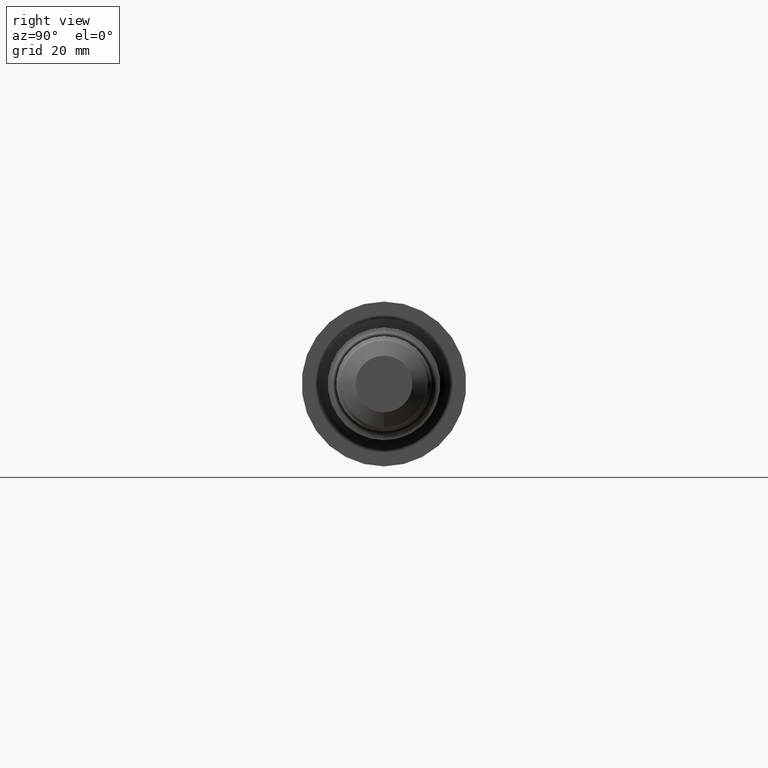
[diagram: clean part render]
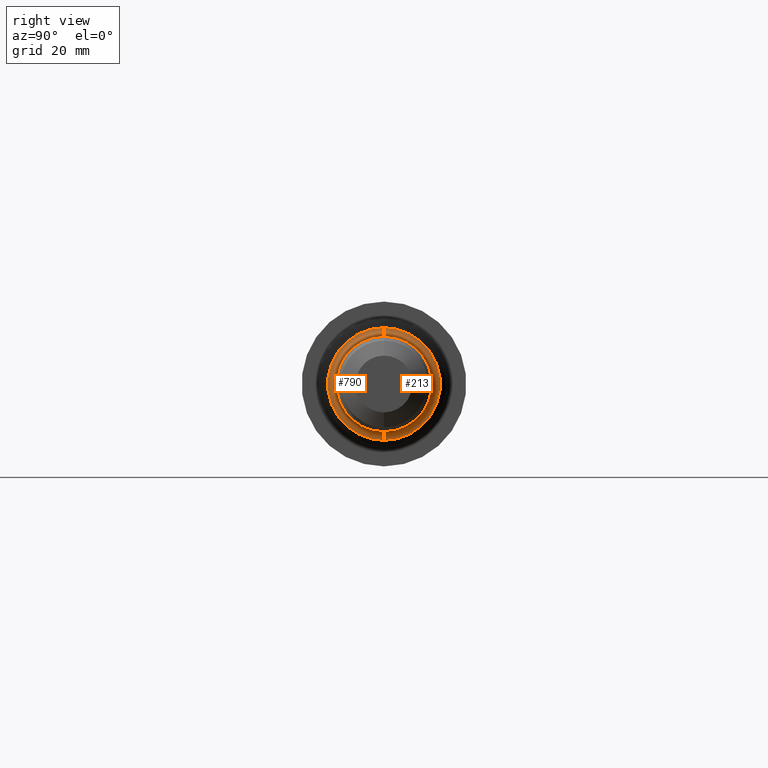
[diagram: same view with one multi-face feature highlighted, each face labeled with its STEP entity id]
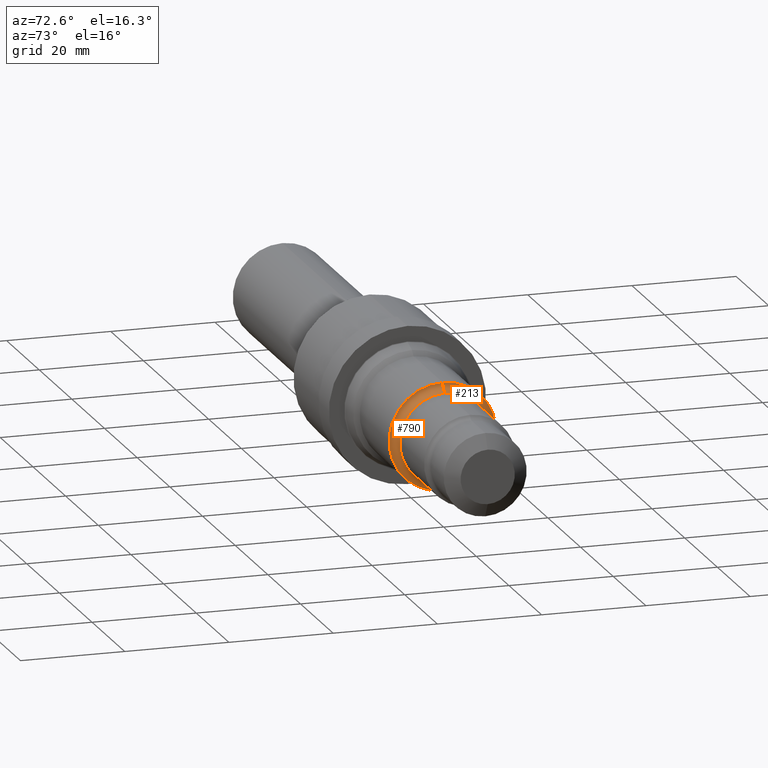
[diagram: same view with one multi-face feature highlighted, each face labeled with its STEP entity id]
A machine part, right view. The highlighted faces form ONE feature: a constant-radius fillet chain: 2 tangent blend faces with common blend radius 1.5748 mm. The faces share edges in the B-rep.
A second angle (auxiliary view) of the same feature is appended — it is thin or edge-on in the first view.
Their STEP definitions:
[1] entity #790 (Torus):
#17 = CIRCLE ( 'NONE', #363, 0.06199999999999997874 ) ;
#30 = CARTESIAN_POINT ( 'NONE',  ( 3.976998709663992493, 0.0000000000000000000, 0.3443999999999999284 ) ) ;
#148 = DIRECTION ( 'NONE',  ( 0.0000000000000000000, -1.000000000000000000, 0.0000000000000000000 ) ) ;
#151 = DIRECTION ( 'NONE',  ( -1.000000000000000000, -0.0000000000000000000, -0.0000000000000000000 ) ) ;
#168 = VERTEX_POINT ( 'NONE', #209 ) ;
#171 = FACE_OUTER_BOUND ( 'NONE', #551, .T. ) ;
#175 = DIRECTION ( 'NONE',  ( 0.0000000000000000000, 0.0000000000000000000, 1.000000000000000000 ) ) ;
#197 = CIRCLE ( 'NONE', #854, 0.4060000000000000275 ) ;
#209 = CARTESIAN_POINT ( 'NONE',  ( 3.915000000000000036, 4.972066004538254721E-17, -0.4060000000000000275 ) ) ;
#212 = CARTESIAN_POINT ( 'NONE',  ( 3.976998709663992493, 0.0000000000000000000, 0.0000000000000000000 ) ) ;
#220 = AXIS2_PLACEMENT_3D ( 'NONE', #624, #778, #704 ) ;
#268 = EDGE_CURVE ( 'NONE', #758, #508, #17, .T. ) ;
#283 = EDGE_CURVE ( 'NONE', #432, #508, #578, .T. ) ;
#310 = DIRECTION ( 'NONE',  ( 0.0000000000000000000, 0.0000000000000000000, 1.000000000000000000 ) ) ;
#315 = EDGE_CURVE ( 'NONE', #168, #758, #197, .T. ) ;
#323 = AXIS2_PLACEMENT_3D ( 'NONE', #442, #881, #310 ) ;
#363 = AXIS2_PLACEMENT_3D ( 'NONE', #823, #148, #585 ) ;
#366 = CIRCLE ( 'NONE', #220, 0.06199999999999997874 ) ;
#375 = DIRECTION ( 'NONE',  ( 0.0000000000000000000, 0.0000000000000000000, 1.000000000000000000 ) ) ;
#432 = VERTEX_POINT ( 'NONE', #542 ) ;
#442 = CARTESIAN_POINT ( 'NONE',  ( 3.976998709663992493, 0.0000000000000000000, 0.0000000000000000000 ) ) ;
#448 = ORIENTED_EDGE ( 'NONE', *, *, #784, .T. ) ;
#508 = VERTEX_POINT ( 'NONE', #30 ) ;
#542 = CARTESIAN_POINT ( 'NONE',  ( 3.976998709663992493, 4.594874790400869413E-17, -0.3443999999999999284 ) ) ;
#551 = EDGE_LOOP ( 'NONE', ( #637, #448, #891, #726 ) ) ;
#578 = CIRCLE ( 'NONE', #323, 0.3443999999999999284 ) ;
#585 = DIRECTION ( 'NONE',  ( 0.0000000000000000000, 0.0000000000000000000, -1.000000000000000000 ) ) ;
#624 = CARTESIAN_POINT ( 'NONE',  ( 3.976998709663992493, 4.976964591734842644E-17, -0.4063999999999999280 ) ) ;
#637 = ORIENTED_EDGE ( 'NONE', *, *, #315, .F. ) ;
#671 = CARTESIAN_POINT ( 'NONE',  ( 3.915000000000000036, 0.0000000000000000000, 0.0000000000000000000 ) ) ;
#702 = CARTESIAN_POINT ( 'NONE',  ( 3.915000000000000036, 0.0000000000000000000, 0.4060000000000000275 ) ) ;
#704 = DIRECTION ( 'NONE',  ( 0.0000000000000000000, -1.224646799147353700E-16, 1.000000000000000000 ) ) ;
#710 = AXIS2_PLACEMENT_3D ( 'NONE', #212, #151, #175 ) ;
#726 = ORIENTED_EDGE ( 'NONE', *, *, #268, .F. ) ;
#735 = TOROIDAL_SURFACE ( 'NONE', #710, 0.4063999999999999280, 0.06200000000000000649 ) ;
#758 = VERTEX_POINT ( 'NONE', #702 ) ;
#778 = DIRECTION ( 'NONE',  ( -0.0000000000000000000, 1.000000000000000000, 1.224646799147353207E-16 ) ) ;
#784 = EDGE_CURVE ( 'NONE', #168, #432, #366, .T. ) ;
#790 = ADVANCED_FACE ( 'NONE', ( #171 ), #735, .F. ) ;
#818 = DIRECTION ( 'NONE',  ( -1.000000000000000000, -0.0000000000000000000, -0.0000000000000000000 ) ) ;
#823 = CARTESIAN_POINT ( 'NONE',  ( 3.976998709663992493, 0.0000000000000000000, 0.4063999999999999280 ) ) ;
#854 = AXIS2_PLACEMENT_3D ( 'NONE', #671, #818, #375 ) ;
#881 = DIRECTION ( 'NONE',  ( -1.000000000000000000, -0.0000000000000000000, -0.0000000000000000000 ) ) ;
#891 = ORIENTED_EDGE ( 'NONE', *, *, #283, .T. ) ;
[2] entity #213 (Torus):
#17 = CIRCLE ( 'NONE', #363, 0.06199999999999997874 ) ;
#30 = CARTESIAN_POINT ( 'NONE',  ( 3.976998709663992493, 0.0000000000000000000, 0.3443999999999999284 ) ) ;
#75 = EDGE_CURVE ( 'NONE', #508, #432, #892, .T. ) ;
#148 = DIRECTION ( 'NONE',  ( 0.0000000000000000000, -1.000000000000000000, 0.0000000000000000000 ) ) ;
#164 = ORIENTED_EDGE ( 'NONE', *, *, #268, .T. ) ;
#168 = VERTEX_POINT ( 'NONE', #209 ) ;
#209 = CARTESIAN_POINT ( 'NONE',  ( 3.915000000000000036, 4.972066004538254721E-17, -0.4060000000000000275 ) ) ;
#213 = ADVANCED_FACE ( 'NONE', ( #374 ), #810, .F. ) ;
#219 = ORIENTED_EDGE ( 'NONE', *, *, #784, .F. ) ;
#220 = AXIS2_PLACEMENT_3D ( 'NONE', #624, #778, #704 ) ;
#268 = EDGE_CURVE ( 'NONE', #758, #508, #17, .T. ) ;
#337 = DIRECTION ( 'NONE',  ( -1.000000000000000000, -0.0000000000000000000, -0.0000000000000000000 ) ) ;
#363 = AXIS2_PLACEMENT_3D ( 'NONE', #823, #148, #585 ) ;
#366 = CIRCLE ( 'NONE', #220, 0.06199999999999997874 ) ;
#374 = FACE_OUTER_BOUND ( 'NONE', #936, .T. ) ;
#427 = CARTESIAN_POINT ( 'NONE',  ( 3.915000000000000036, 0.0000000000000000000, 0.0000000000000000000 ) ) ;
#432 = VERTEX_POINT ( 'NONE', #542 ) ;
#463 = ORIENTED_EDGE ( 'NONE', *, *, #75, .T. ) ;
#486 = DIRECTION ( 'NONE',  ( 0.0000000000000000000, 0.0000000000000000000, 1.000000000000000000 ) ) ;
#489 = AXIS2_PLACEMENT_3D ( 'NONE', #890, #830, #525 ) ;
#501 = ORIENTED_EDGE ( 'NONE', *, *, #860, .F. ) ;
#508 = VERTEX_POINT ( 'NONE', #30 ) ;
#510 = CIRCLE ( 'NONE', #849, 0.4060000000000000275 ) ;
#513 = DIRECTION ( 'NONE',  ( -1.000000000000000000, -0.0000000000000000000, -0.0000000000000000000 ) ) ;
#525 = DIRECTION ( 'NONE',  ( 0.0000000000000000000, 0.0000000000000000000, 1.000000000000000000 ) ) ;
#542 = CARTESIAN_POINT ( 'NONE',  ( 3.976998709663992493, 4.594874790400869413E-17, -0.3443999999999999284 ) ) ;
#573 = AXIS2_PLACEMENT_3D ( 'NONE', #824, #513, #486 ) ;
#585 = DIRECTION ( 'NONE',  ( 0.0000000000000000000, 0.0000000000000000000, -1.000000000000000000 ) ) ;
#624 = CARTESIAN_POINT ( 'NONE',  ( 3.976998709663992493, 4.976964591734842644E-17, -0.4063999999999999280 ) ) ;
#674 = DIRECTION ( 'NONE',  ( 0.0000000000000000000, 0.0000000000000000000, 1.000000000000000000 ) ) ;
#702 = CARTESIAN_POINT ( 'NONE',  ( 3.915000000000000036, 0.0000000000000000000, 0.4060000000000000275 ) ) ;
#704 = DIRECTION ( 'NONE',  ( 0.0000000000000000000, -1.224646799147353700E-16, 1.000000000000000000 ) ) ;
#758 = VERTEX_POINT ( 'NONE', #702 ) ;
#778 = DIRECTION ( 'NONE',  ( -0.0000000000000000000, 1.000000000000000000, 1.224646799147353207E-16 ) ) ;
#784 = EDGE_CURVE ( 'NONE', #168, #432, #366, .T. ) ;
#810 = TOROIDAL_SURFACE ( 'NONE', #489, 0.4063999999999999280, 0.06200000000000000649 ) ;
#823 = CARTESIAN_POINT ( 'NONE',  ( 3.976998709663992493, 0.0000000000000000000, 0.4063999999999999280 ) ) ;
#824 = CARTESIAN_POINT ( 'NONE',  ( 3.976998709663992493, 0.0000000000000000000, 0.0000000000000000000 ) ) ;
#830 = DIRECTION ( 'NONE',  ( -1.000000000000000000, -0.0000000000000000000, -0.0000000000000000000 ) ) ;
#849 = AXIS2_PLACEMENT_3D ( 'NONE', #427, #337, #674 ) ;
#860 = EDGE_CURVE ( 'NONE', #758, #168, #510, .T. ) ;
#890 = CARTESIAN_POINT ( 'NONE',  ( 3.976998709663992493, 0.0000000000000000000, 0.0000000000000000000 ) ) ;
#892 = CIRCLE ( 'NONE', #573, 0.3443999999999999284 ) ;
#936 = EDGE_LOOP ( 'NONE', ( #219, #501, #164, #463 ) ) ;